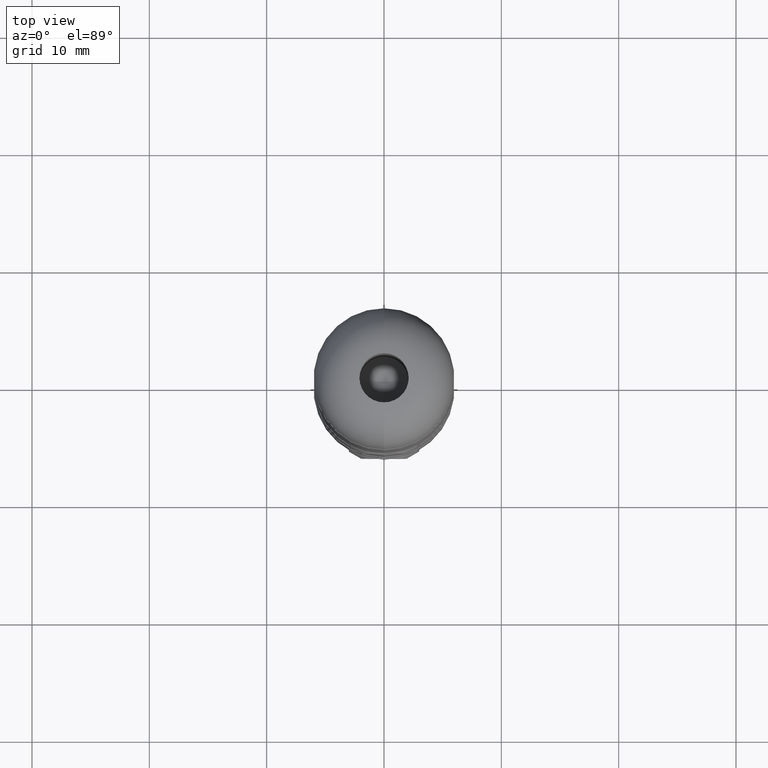
[diagram: clean part render]
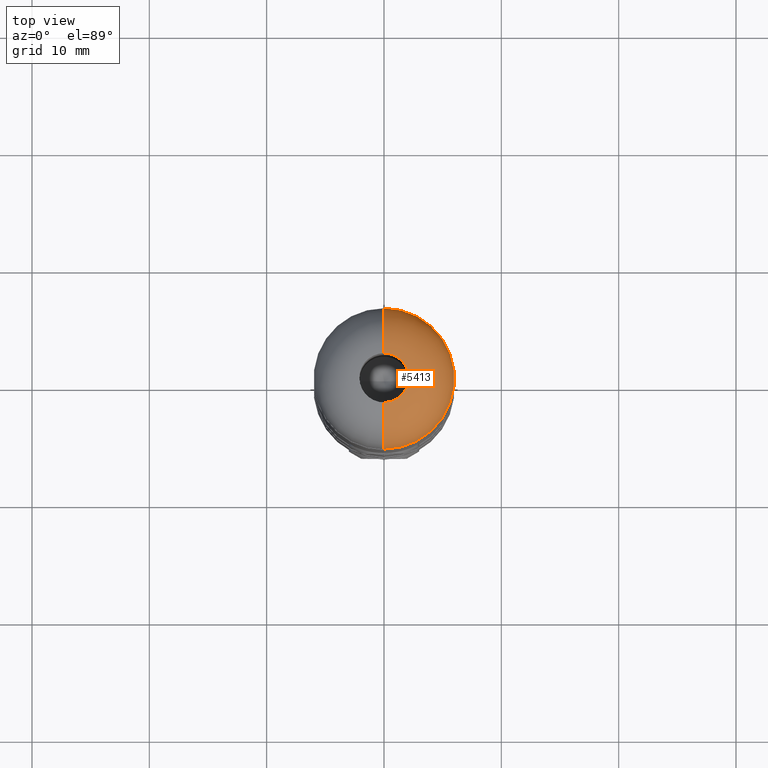
[diagram: same view with one face highlighted and labeled with its STEP entity id]
A machine part, top view. The second image highlights one B-rep face of the part: STEP entity #5413.
In plain terms, the highlighted toroidal blend (fillet) surface has major radius 2 mm and minor (blend) radius 4 mm.
Its self-contained STEP definition (entity closure, byte-faithful):
#1576 = EDGE_CURVE ( 'NONE', #7366, #5304, #14047, .T. ) ;
#1639 = DIRECTION ( 'NONE',  ( 0.0000000000000000000, -6.237694939725493400E-017, -1.000000000000000000 ) ) ;
#2876 = ORIENTED_EDGE ( 'NONE', *, *, #4048, .F. ) ;
#3114 = EDGE_CURVE ( 'NONE', #10360, #6395, #16352, .T. ) ;
#3788 = FACE_OUTER_BOUND ( 'NONE', #6589, .T. ) ;
#3809 = CARTESIAN_POINT ( 'NONE',  ( 0.0000000000000000000, -5.999999999999991100, 26.00000000000000000 ) ) ;
#4048 = EDGE_CURVE ( 'NONE', #5304, #6395, #11903, .T. ) ;
#4330 = CARTESIAN_POINT ( 'NONE',  ( 0.0000000000000000000, -2.495077975890193400E-016, 26.00000000000000000 ) ) ;
#5020 = VERTEX_POINT ( 'NONE', #16263 ) ;
#5304 = VERTEX_POINT ( 'NONE', #11171 ) ;
#5413 = ADVANCED_FACE ( 'NONE', ( #3788 ), #12085, .T. ) ;
#5776 = DIRECTION ( 'NONE',  ( -0.0000000000000000000, 6.237694939725493400E-017, 1.000000000000000000 ) ) ;
#6395 = VERTEX_POINT ( 'NONE', #3809 ) ;
#6589 = EDGE_LOOP ( 'NONE', ( #12302, #11165, #2876, #12459, #11452 ) ) ;
#6699 = CARTESIAN_POINT ( 'NONE',  ( 0.0000000000000000000, -7.798337355281899000E-020, 29.99874980462643800 ) ) ;
#7002 = CARTESIAN_POINT ( 'NONE',  ( 0.0000000000000000000, 2.099999999999997000, 29.99874980462643800 ) ) ;
#7070 = CARTESIAN_POINT ( 'NONE',  ( 0.0000000000000000000, -7.798337355281899000E-020, 29.99874980462643800 ) ) ;
#7190 = CARTESIAN_POINT ( 'NONE',  ( 0.0000000000000000000, -2.495077975890193400E-016, 26.00000000000000000 ) ) ;
#7366 = VERTEX_POINT ( 'NONE', #7002 ) ;
#7942 = DIRECTION ( 'NONE',  ( 0.0000000000000000000, 0.0000000000000000000, 1.000000000000000000 ) ) ;
#10075 = CARTESIAN_POINT ( 'NONE',  ( 2.449293598294695600E-016, -1.999999999999991800, 26.00000000000000000 ) ) ;
#10077 = DIRECTION ( 'NONE',  ( 0.0000000000000000000, 1.000000000000000000, 0.0000000000000000000 ) ) ;
#10135 = AXIS2_PLACEMENT_3D ( 'NONE', #14933, #13625, #7942 ) ;
#10360 = VERTEX_POINT ( 'NONE', #10547 ) ;
#10547 = CARTESIAN_POINT ( 'NONE',  ( 4.959819536546772700E-016, -2.099999999999997000, 29.99874980462643800 ) ) ;
#10745 = AXIS2_PLACEMENT_3D ( 'NONE', #4330, #1639, #13864 ) ;
#11128 = AXIS2_PLACEMENT_3D ( 'NONE', #7070, #5776, #13954 ) ;
#11165 = ORIENTED_EDGE ( 'NONE', *, *, #3114, .T. ) ;
#11171 = CARTESIAN_POINT ( 'NONE',  ( 7.347880794884108900E-016, 5.999999999999991100, 26.00000000000000000 ) ) ;
#11319 = DIRECTION ( 'NONE',  ( -1.224646799147353200E-016, 1.000000000000000000, 0.0000000000000000000 ) ) ;
#11452 = ORIENTED_EDGE ( 'NONE', *, *, #13168, .F. ) ;
#11903 = CIRCLE ( 'NONE', #13928, 5.999999999999991100 ) ;
#12085 = TOROIDAL_SURFACE ( 'NONE', #10745, 1.999999999999991300, 4.000000000000000000 ) ;
#12300 = EDGE_CURVE ( 'NONE', #10360, #5020, #17437, .T. ) ;
#12302 = ORIENTED_EDGE ( 'NONE', *, *, #12300, .F. ) ;
#12459 = ORIENTED_EDGE ( 'NONE', *, *, #1576, .F. ) ;
#12819 = DIRECTION ( 'NONE',  ( 0.0000000000000000000, -6.237694939725493400E-017, -1.000000000000000000 ) ) ;
#13168 = EDGE_CURVE ( 'NONE', #5020, #7366, #15791, .T. ) ;
#13551 = DIRECTION ( 'NONE',  ( -0.0000000000000000000, 6.237694939725493400E-017, 1.000000000000000000 ) ) ;
#13625 = DIRECTION ( 'NONE',  ( -1.000000000000000000, 0.0000000000000000000, -0.0000000000000000000 ) ) ;
#13864 = DIRECTION ( 'NONE',  ( 0.0000000000000000000, 1.000000000000000000, -6.237694939725493400E-017 ) ) ;
#13928 = AXIS2_PLACEMENT_3D ( 'NONE', #7190, #12819, #10077 ) ;
#13954 = DIRECTION ( 'NONE',  ( 0.0000000000000000000, 1.000000000000000000, 0.0000000000000000000 ) ) ;
#14016 = DIRECTION ( 'NONE',  ( 1.000000000000000000, 1.224646799147353200E-016, -7.638973141992468000E-033 ) ) ;
#14047 = CIRCLE ( 'NONE', #10135, 4.000000000000000000 ) ;
#14271 = AXIS2_PLACEMENT_3D ( 'NONE', #10075, #14016, #11319 ) ;
#14920 = DIRECTION ( 'NONE',  ( 0.0000000000000000000, 1.000000000000000000, 0.0000000000000000000 ) ) ;
#14933 = CARTESIAN_POINT ( 'NONE',  ( 0.0000000000000000000, 1.999999999999990900, 26.00000000000000000 ) ) ;
#15791 = CIRCLE ( 'NONE', #16912, 2.099999999999997000 ) ;
#16263 = CARTESIAN_POINT ( 'NONE',  ( 2.099999999999997000, 3.708278680638678200E-015, 29.99874980462643800 ) ) ;
#16352 = CIRCLE ( 'NONE', #14271, 4.000000000000000000 ) ;
#16912 = AXIS2_PLACEMENT_3D ( 'NONE', #6699, #13551, #14920 ) ;
#17437 = CIRCLE ( 'NONE', #11128, 2.099999999999997000 ) ;